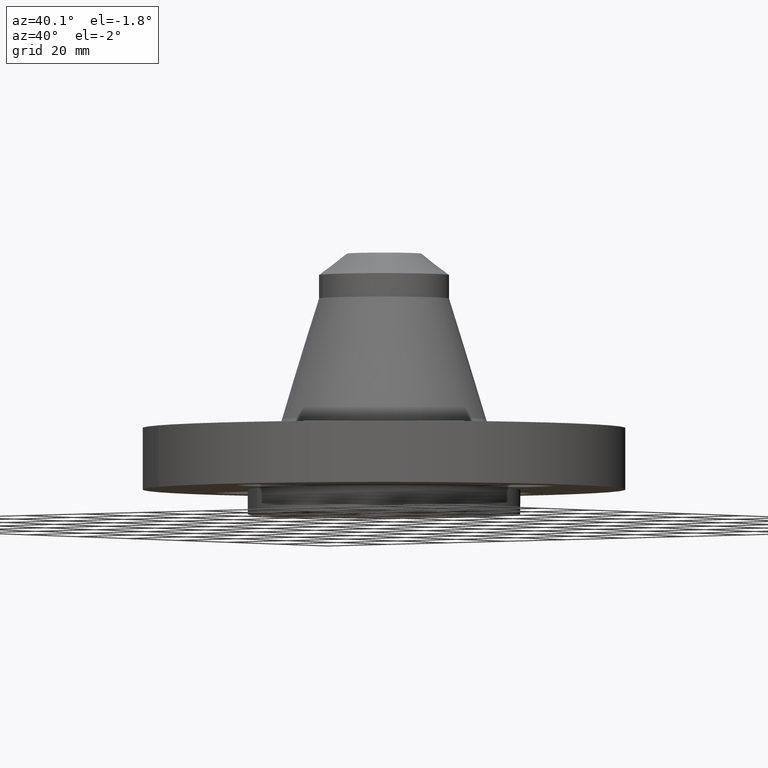
[diagram: clean part render]
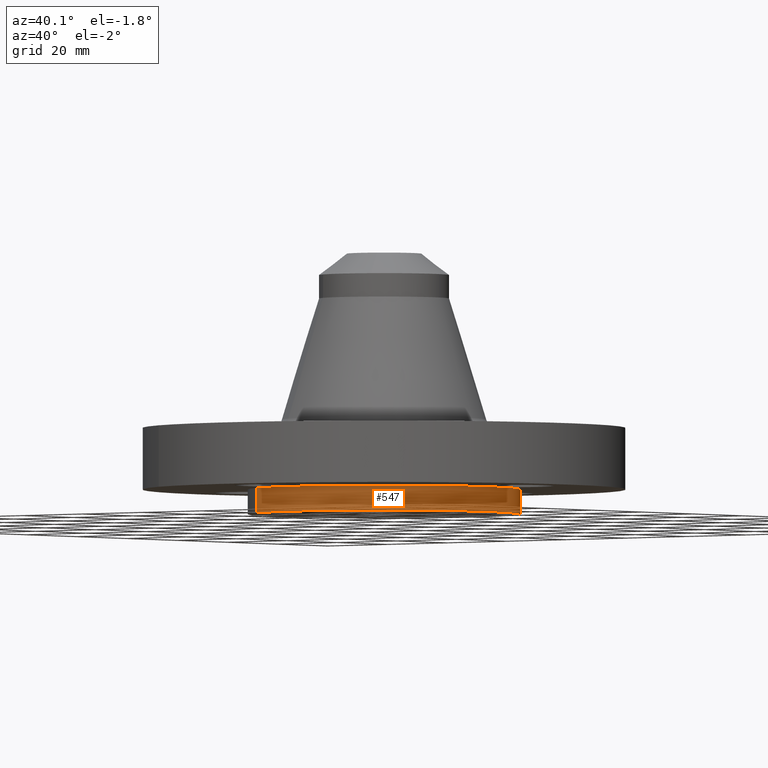
[diagram: same view with one face highlighted and labeled with its STEP entity id]
A machine part, auxiliary view. The second image highlights one B-rep face of the part: STEP entity #547.
In plain terms, the highlighted cylindrical surface (partial cylindrical patch) has radius 34.925 mm, axis along (0, 0, -1).
Its self-contained STEP definition (entity closure, byte-faithful):
#178=AXIS2_PLACEMENT_3D('Circle Axis2P3D',#176,#177,$) ;
#204=AXIS2_PLACEMENT_3D('Circle Axis2P3D',#202,#203,$) ;
#249=AXIS2_PLACEMENT_3D('Circle Axis2P3D',#247,#248,$) ;
#506=AXIS2_PLACEMENT_3D('Cylinder Axis2P3D',#503,#504,#505) ;
#161=CARTESIAN_POINT('Vertex',(6.99353086378E-016,-1.37500000001,-3.57865967831E-011)) ;
#176=CARTESIAN_POINT('Axis2P3D Location',(1.27493186612E-010,-7.34938968825E-011,0.)) ;
#180=CARTESIAN_POINT('Vertex',(1.37500000001,-5.59482469102E-016,-3.57865967831E-011)) ;
#202=CARTESIAN_POINT('Axis2P3D Location',(-1.36906898766E-010,-8.43279951555E-011,0.)) ;
#206=CARTESIAN_POINT('Vertex',(0.659210115586,1.20667602261,-3.57865967831E-011)) ;
#244=CARTESIAN_POINT('Vertex',(-0.659210115586,-1.20667602261,-3.57865967831E-011)) ;
#247=CARTESIAN_POINT('Axis2P3D Location',(-2.55224747723E-010,-8.29285616555E-010,0.)) ;
#503=CARTESIAN_POINT('Axis2P3D Location',(0.,0.,1.065)) ;
#509=CARTESIAN_POINT('Control Point',(0.659210115587,1.20667602261,-0.250000000021)) ;
#510=CARTESIAN_POINT('Control Point',(0.848754341981,1.10312753979,-0.25000000002)) ;
#511=CARTESIAN_POINT('Control Point',(1.01796687132,0.962362135154,-0.250000000019)) ;
#512=CARTESIAN_POINT('Control Point',(1.15707137571,0.789672882785,-0.250000000018)) ;
#513=CARTESIAN_POINT('Control Point',(1.3600737599,0.399056512257,-0.250000000016)) ;
#514=CARTESIAN_POINT('Control Point',(1.40030406946,-0.0393184860081,-0.250000000014)) ;
#515=CARTESIAN_POINT('Control Point',(1.37655606641,-0.259789965742,-0.250000000013)) ;
#516=CARTESIAN_POINT('Control Point',(1.24389294443,-0.679541812643,-0.250000000011)) ;
#517=CARTESIAN_POINT('Control Point',(0.962362135155,-1.01796687132,-0.250000000009)) ;
#518=CARTESIAN_POINT('Control Point',(0.789672882785,-1.1570713757,-0.250000000008)) ;
#519=CARTESIAN_POINT('Control Point',(0.399056512258,-1.3600737599,-0.250000000006)) ;
#520=CARTESIAN_POINT('Control Point',(-0.0393184860075,-1.40030406946,-0.250000000004)) ;
#521=CARTESIAN_POINT('Control Point',(-0.259789965741,-1.37655606641,-0.250000000003)) ;
#522=CARTESIAN_POINT('Control Point',(-0.469665889192,-1.31022450542,-0.250000000002)) ;
#523=CARTESIAN_POINT('Control Point',(-0.659210115586,-1.20667602261,-0.250000000001)) ;
#524=CARTESIAN_POINT('Vertex',(0.659210115586,1.20667602261,-0.250000000021)) ;
#526=CARTESIAN_POINT('Vertex',(-0.659210115587,-1.20667602261,-0.250000000021)) ;
#529=CARTESIAN_POINT('Line Origine',(0.659210115586,1.20667602261,-0.125000000011)) ;
#534=CARTESIAN_POINT('Line Origine',(-0.659210115586,-1.20667602261,-0.125000000011)) ;
#177=DIRECTION('Axis2P3D Direction',(0.,0.,-0.0393700787402)) ;
#203=DIRECTION('Axis2P3D Direction',(0.,0.,-0.0393700787402)) ;
#248=DIRECTION('Axis2P3D Direction',(0.,0.,-0.0393700787402)) ;
#504=DIRECTION('Axis2P3D Direction',(0.,0.,-0.0393700787402)) ;
#505=DIRECTION('Axis2P3D XDirection',(0.0188750212049,0.0345504945626,0.)) ;
#530=DIRECTION('Vector Direction',(0.,0.,-0.0393700787402)) ;
#535=DIRECTION('Vector Direction',(0.,0.,-0.0393700787402)) ;
#531=VECTOR('Line Direction',#530,0.0393700787402) ;
#536=VECTOR('Line Direction',#535,0.0393700787402) ;
#540=ORIENTED_EDGE('',*,*,#528,.F.) ;
#541=ORIENTED_EDGE('',*,*,#533,.T.) ;
#542=ORIENTED_EDGE('',*,*,#208,.T.) ;
#543=ORIENTED_EDGE('',*,*,#182,.T.) ;
#544=ORIENTED_EDGE('',*,*,#251,.T.) ;
#545=ORIENTED_EDGE('',*,*,#538,.F.) ;
#547=ADVANCED_FACE('PartBody',(#546),#507,.T.) ;
#508=B_SPLINE_CURVE_WITH_KNOTS('',5,(#509,#510,#511,#512,#513,#514,#515,#516,#517,#518,#519,#520,#521,#522,#523),.UNSPECIFIED.,.F.,.U.,(6,3,3,3,6),(-54.8600617137,-27.4300308568,-3.5527136788E-015,27.4300308568,54.8600617137),.UNSPECIFIED.) ;
#179=CIRCLE('generated circle',#178,1.3749999999) ;
#205=CIRCLE('generated circle',#204,1.37500000017) ;
#250=CIRCLE('generated circle',#249,1.37499999915) ;
#507=CYLINDRICAL_SURFACE('generated cylinder',#506,1.37500000001) ;
#182=EDGE_CURVE('',#181,#162,#179,.T.) ;
#208=EDGE_CURVE('',#207,#181,#205,.T.) ;
#251=EDGE_CURVE('',#162,#245,#250,.T.) ;
#528=EDGE_CURVE('',#525,#527,#508,.T.) ;
#533=EDGE_CURVE('',#525,#207,#532,.F.) ;
#538=EDGE_CURVE('',#527,#245,#537,.F.) ;
#539=EDGE_LOOP('',(#540,#541,#542,#543,#544,#545)) ;
#546=FACE_OUTER_BOUND('',#539,.T.) ;
#532=LINE('Line',#529,#531) ;
#537=LINE('Line',#534,#536) ;
#162=VERTEX_POINT('',#161) ;
#181=VERTEX_POINT('',#180) ;
#207=VERTEX_POINT('',#206) ;
#245=VERTEX_POINT('',#244) ;
#525=VERTEX_POINT('',#524) ;
#527=VERTEX_POINT('',#526) ;